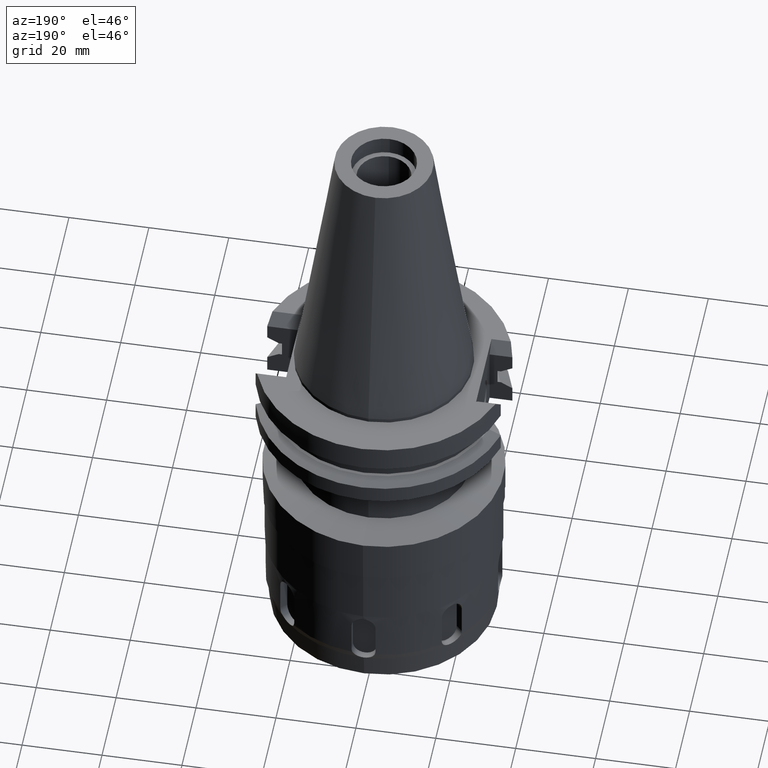
[diagram: clean part render]
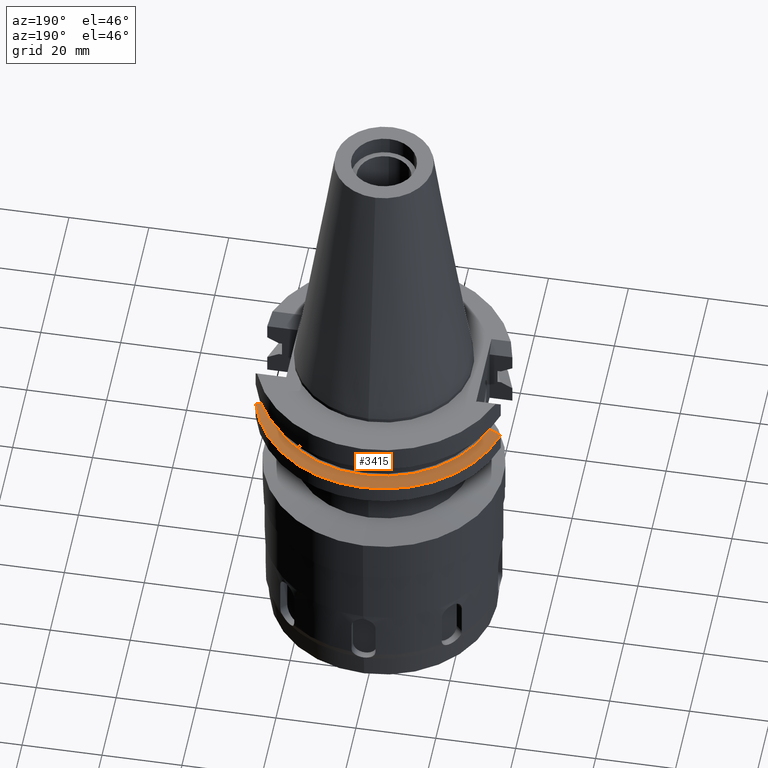
[diagram: same view with one face highlighted and labeled with its STEP entity id]
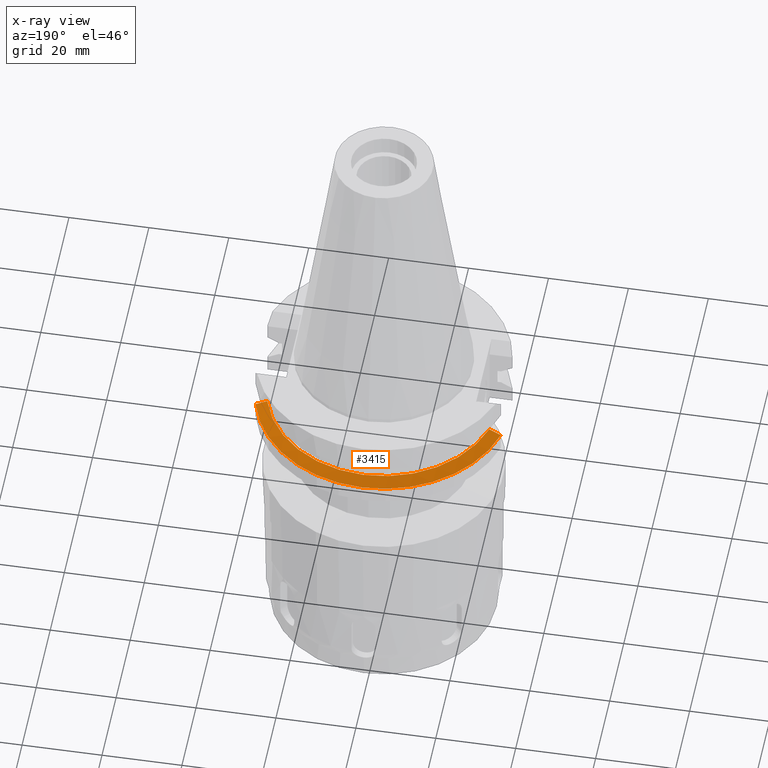
[diagram: x-ray of the same camera — body ghosted, the highlighted face saturated]
A machine part, auxiliary view. The second image highlights one B-rep face of the part: STEP entity #3415.
The next image is the same camera in x-ray: the body ghosted, the highlighted face saturated — about 0% of this face is hidden behind the body in this view.
In plain terms, the highlighted conical surface has half-angle 60 deg.
Its self-contained STEP definition (entity closure, byte-faithful):
#417=CARTESIAN_POINT('',(3.067550165946E1,8.189999874261E0,-1.465366564546E1));
#418=CARTESIAN_POINT('',(3.034684090656E1,8.189999874261E0,-1.447033495944E1));
#419=CARTESIAN_POINT('',(2.969460736103E1,8.189999973368E0,-1.410690452402E1));
#420=CARTESIAN_POINT('',(2.873150886677E1,8.190000281820E0,-1.357149738610E1));
#421=CARTESIAN_POINT('',(2.809959104432E1,8.189999360175E0,-1.322106707395E1));
#422=CARTESIAN_POINT('',(2.778617704787E1,8.189999360175E0,-1.30475E1));
#427=CARTESIAN_POINT('',(-2.778616453870E1,8.190000190908E0,-1.30475E1));
#428=CARTESIAN_POINT('',(-2.809959085932E1,8.190000190908E0,-1.322107389442E1));
#429=CARTESIAN_POINT('',(-2.873150366397E1,8.189999991768E0,-1.357149165954E1));
#430=CARTESIAN_POINT('',(-2.969460570245E1,8.189999742449E0,-1.410690093809E1));
#431=CARTESIAN_POINT('',(-3.034683477185E1,8.190000606441E0,-1.447033819286E1));
#432=CARTESIAN_POINT('',(-3.067550146398E1,8.190000606441E0,-1.465367218834E1));
#437=CARTESIAN_POINT('',(0.E0,0.E0,-1.465366676908E1));
#438=DIRECTION('',(0.E0,0.E0,-1.E0));
#439=DIRECTION('',(-9.661575315241E-1,2.579527559055E-1,0.E0));
#440=AXIS2_PLACEMENT_3D('',#437,#438,#439);
#445=CARTESIAN_POINT('',(0.E0,0.E0,-1.465366676908E1));
#446=DIRECTION('',(0.E0,0.E0,-1.E0));
#447=DIRECTION('',(0.E0,1.E0,0.E0));
#448=AXIS2_PLACEMENT_3D('',#445,#446,#447);
#476=CARTESIAN_POINT('',(0.E0,0.E0,-1.30475E1));
#477=DIRECTION('',(0.E0,0.E0,-1.E0));
#478=DIRECTION('',(-9.592008904640E-1,2.827253998727E-1,0.E0));
#479=AXIS2_PLACEMENT_3D('',#476,#477,#478);
#484=CARTESIAN_POINT('',(0.E0,0.E0,-1.30475E1));
#485=DIRECTION('',(0.E0,0.E0,-1.E0));
#486=DIRECTION('',(0.E0,1.E0,0.E0));
#487=AXIS2_PLACEMENT_3D('',#484,#485,#486);
#2950=CARTESIAN_POINT('',(3.067550165946E1,8.189999874261E0,-1.465366564546E1));
#2951=VERTEX_POINT('',#2950);
#2952=CARTESIAN_POINT('',(-3.067550162589E1,8.190000000001E0,
-1.465366676908E1));
#2953=CARTESIAN_POINT('',(0.E0,3.175E1,-1.465366676908E1));
#2954=VERTEX_POINT('',#2952);
#2955=VERTEX_POINT('',#2953);
#2979=VERTEX_POINT('',#427);
#2991=VERTEX_POINT('',#422);
#2992=CARTESIAN_POINT('',(-3.537899182731E-14,2.896803755053E1,-1.30475E1));
#2993=VERTEX_POINT('',#2992);
#3400=CARTESIAN_POINT('',(0.E0,0.E0,-1.385058338454E1));
#3401=DIRECTION('',(0.E0,0.E0,-1.E0));
#3402=DIRECTION('',(0.E0,-1.E0,0.E0));
#3403=AXIS2_PLACEMENT_3D('',#3400,#3401,#3402);
#3404=CONICAL_SURFACE('',#3403,3.035901877527E1,6.E1);
#3405=ORIENTED_EDGE('',*,*,#3283,.T.);
#3407=ORIENTED_EDGE('',*,*,#3406,.F.);
#3409=ORIENTED_EDGE('',*,*,#3408,.F.);
#3410=ORIENTED_EDGE('',*,*,#3368,.T.);
#3411=ORIENTED_EDGE('',*,*,#3392,.T.);
#3412=ORIENTED_EDGE('',*,*,#3390,.T.);
#3413=EDGE_LOOP('',(#3405,#3407,#3409,#3410,#3411,#3412));
#3414=FACE_OUTER_BOUND('',#3413,.F.);
#423=B_SPLINE_CURVE_WITH_KNOTS('',3,(#417,#418,#419,#420,#421,#422),
.UNSPECIFIED.,.F.,.F.,(4,1,1,4),(0.E0,3.333333333333E-1,6.666666666667E-1,1.E0),
.UNSPECIFIED.);
#433=B_SPLINE_CURVE_WITH_KNOTS('',3,(#427,#428,#429,#430,#431,#432),
.UNSPECIFIED.,.F.,.F.,(4,1,1,4),(0.E0,3.333333333333E-1,6.666666666667E-1,1.E0),
.UNSPECIFIED.);
#441=CIRCLE('',#440,3.175E1);
#449=CIRCLE('',#448,3.175E1);
#480=CIRCLE('',#479,2.896803755053E1);
#488=CIRCLE('',#487,2.896803755053E1);
#3283=EDGE_CURVE('',#2951,#2991,#423,.T.);
#3368=EDGE_CURVE('',#2979,#2954,#433,.T.);
#3390=EDGE_CURVE('',#2955,#2951,#449,.T.);
#3392=EDGE_CURVE('',#2954,#2955,#441,.T.);
#3406=EDGE_CURVE('',#2993,#2991,#488,.T.);
#3408=EDGE_CURVE('',#2979,#2993,#480,.T.);
#3415=ADVANCED_FACE('',(#3414),#3404,.T.);